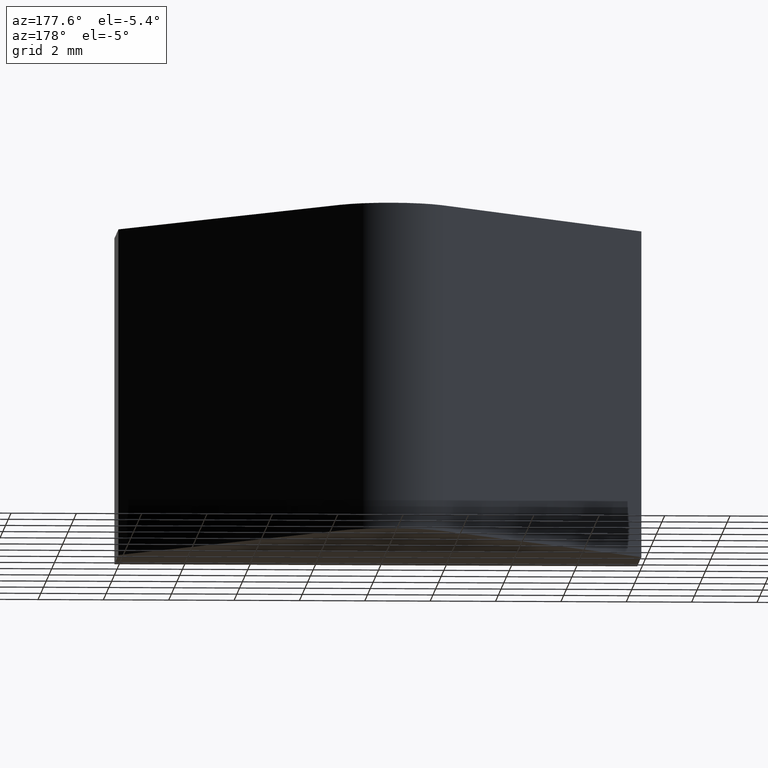
[diagram: clean part render]
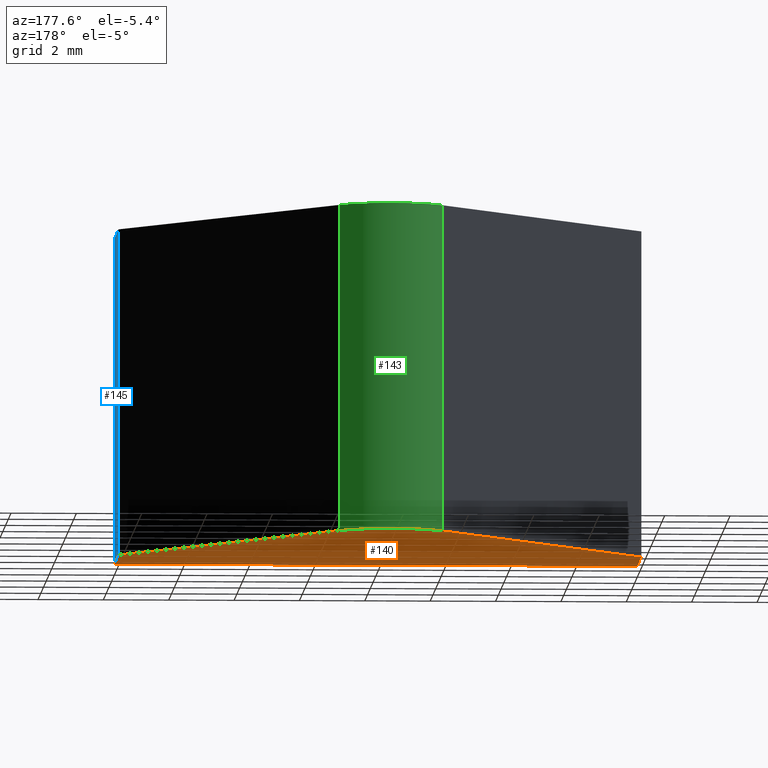
[diagram: same view with three faces highlighted in distinct colors, each labeled with its STEP entity id]
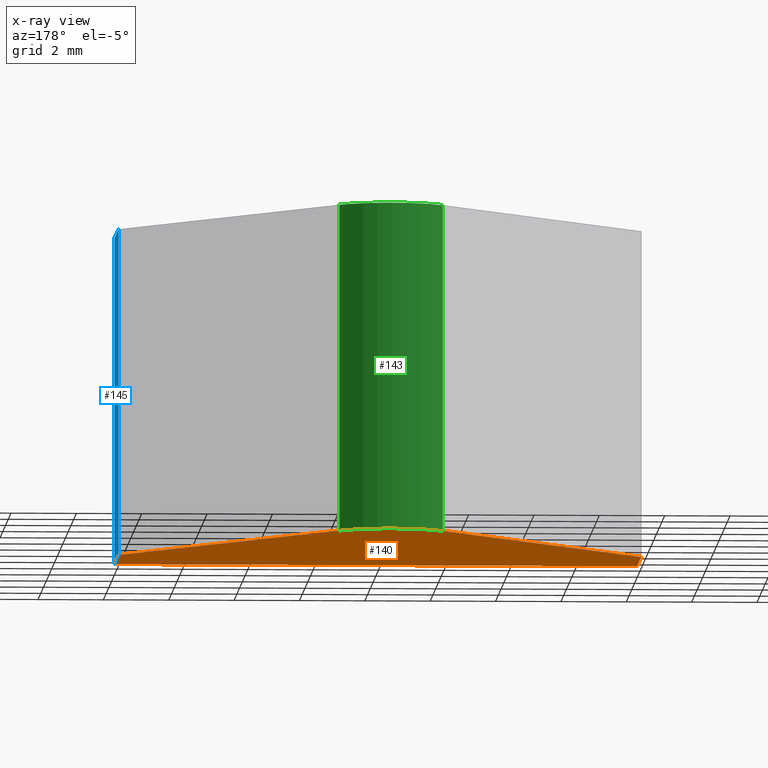
[diagram: x-ray of the same camera — body ghosted, the three highlighted faces saturated]
A machine part, auxiliary view with three faces highlighted in distinct colors.
The next image is the same camera in x-ray (body ghosted, the three faces saturated) — at least one of them is partly hidden behind the body in this view.
Their STEP definitions:

[orange] entity #140 — the highlighted planar face has unit normal (0, 0, 1).
#17=FACE_OUTER_BOUND('',#25,.T.);
#25=EDGE_LOOP('',(#97,#98,#99,#100,#101,#102));
#33=CIRCLE('',#172,2.);
#35=LINE('',#223,#51);
#36=LINE('',#225,#52);
#37=LINE('',#227,#53);
#38=LINE('',#229,#54);
#39=LINE('',#232,#55);
#51=VECTOR('',#185,10.);
#52=VECTOR('',#186,10.);
#53=VECTOR('',#187,10.);
#54=VECTOR('',#188,10.);
#55=VECTOR('',#191,10.);
#67=VERTEX_POINT('',#221);
#68=VERTEX_POINT('',#222);
#69=VERTEX_POINT('',#224);
#70=VERTEX_POINT('',#226);
#71=VERTEX_POINT('',#228);
#72=VERTEX_POINT('',#230);
#79=EDGE_CURVE('',#67,#68,#35,.T.);
#80=EDGE_CURVE('',#69,#67,#36,.T.);
#81=EDGE_CURVE('',#70,#69,#37,.T.);
#82=EDGE_CURVE('',#71,#70,#38,.T.);
#83=EDGE_CURVE('',#72,#71,#33,.T.);
#84=EDGE_CURVE('',#68,#72,#39,.T.);
#97=ORIENTED_EDGE('',*,*,#79,.F.);
#98=ORIENTED_EDGE('',*,*,#80,.F.);
#99=ORIENTED_EDGE('',*,*,#81,.F.);
#100=ORIENTED_EDGE('',*,*,#82,.F.);
#101=ORIENTED_EDGE('',*,*,#83,.F.);
#102=ORIENTED_EDGE('',*,*,#84,.F.);
#133=PLANE('',#171);
#140=ADVANCED_FACE('',(#17),#133,.F.);
#171=AXIS2_PLACEMENT_3D('',#220,#183,#184);
#172=AXIS2_PLACEMENT_3D('',#231,#189,#190);
#183=DIRECTION('center_axis',(0.,0.,1.));
#184=DIRECTION('ref_axis',(1.,0.,0.));
#185=DIRECTION('',(7.40148683083438E-16,1.,0.));
#186=DIRECTION('',(1.,0.,0.));
#187=DIRECTION('',(7.40148683083438E-16,-1.,0.));
#188=DIRECTION('',(-0.615242938683933,-0.788337571348441,0.));
#189=DIRECTION('center_axis',(0.,0.,1.));
#190=DIRECTION('ref_axis',(-0.788337571348441,-0.615242938683933,0.));
#191=DIRECTION('',(-0.615242938683933,0.788337571348441,0.));
#220=CARTESIAN_POINT('Origin',(2.77555756156289E-16,4.30027206291639,-5.));
#221=CARTESIAN_POINT('',(8.,0.,-5.));
#222=CARTESIAN_POINT('',(8.,3.,-5.));
#223=CARTESIAN_POINT('',(8.,3.,-5.));
#224=CARTESIAN_POINT('',(-8.,0.,-5.));
#225=CARTESIAN_POINT('',(8.,0.,-5.));
#226=CARTESIAN_POINT('',(-8.,3.,-5.));
#227=CARTESIAN_POINT('',(-8.,0.,-5.));
#228=CARTESIAN_POINT('',(-1.57667514269688,11.2304858773679,-5.));
#229=CARTESIAN_POINT('',(-8.,3.,-5.));
#230=CARTESIAN_POINT('',(1.57667514269688,11.2304858773679,-5.));
#231=CARTESIAN_POINT('Origin',(0.,10.,-5.));
#232=CARTESIAN_POINT('',(1.57667514269688,11.2304858773679,-5.));

[blue] entity #145 — the highlighted planar face has unit normal (1, -0, 0).
#22=FACE_OUTER_BOUND('',#30,.T.);
#30=EDGE_LOOP('',(#119,#120,#121,#122));
#35=LINE('',#223,#51);
#47=LINE('',#250,#63);
#48=LINE('',#253,#64);
#49=LINE('',#254,#65);
#51=VECTOR('',#185,10.);
#63=VECTOR('',#209,10.);
#64=VECTOR('',#212,10.);
#65=VECTOR('',#213,10.);
#67=VERTEX_POINT('',#221);
#68=VERTEX_POINT('',#222);
#77=VERTEX_POINT('',#248);
#78=VERTEX_POINT('',#252);
#79=EDGE_CURVE('',#67,#68,#35,.T.);
#93=EDGE_CURVE('',#77,#68,#47,.T.);
#94=EDGE_CURVE('',#77,#78,#48,.T.);
#95=EDGE_CURVE('',#67,#78,#49,.T.);
#119=ORIENTED_EDGE('',*,*,#94,.T.);
#120=ORIENTED_EDGE('',*,*,#95,.F.);
#121=ORIENTED_EDGE('',*,*,#79,.T.);
#122=ORIENTED_EDGE('',*,*,#93,.F.);
#137=PLANE('',#178);
#145=ADVANCED_FACE('',(#22),#137,.T.);
#178=AXIS2_PLACEMENT_3D('',#251,#210,#211);
#185=DIRECTION('',(7.40148683083438E-16,1.,0.));
#209=DIRECTION('',(0.,0.,-1.));
#210=DIRECTION('center_axis',(1.,-7.40148683083438E-16,0.));
#211=DIRECTION('ref_axis',(0.,0.,-1.));
#212=DIRECTION('',(-7.40148683083438E-16,-1.,0.));
#213=DIRECTION('',(0.,0.,1.));
#221=CARTESIAN_POINT('',(8.,0.,-5.));
#222=CARTESIAN_POINT('',(8.,3.,-5.));
#223=CARTESIAN_POINT('',(8.,3.,-5.));
#248=CARTESIAN_POINT('',(8.,3.,5.));
#250=CARTESIAN_POINT('',(8.,3.,0.));
#251=CARTESIAN_POINT('Origin',(8.,3.,0.));
#252=CARTESIAN_POINT('',(8.,0.,5.));
#253=CARTESIAN_POINT('',(8.,3.,5.));
#254=CARTESIAN_POINT('',(8.,0.,0.));

[green] entity #143 — the highlighted cylindrical surface (partial cylindrical patch) has radius 2 mm, axis along (0, 0, 1).
#16=CYLINDRICAL_SURFACE('',#175,2.);
#20=FACE_OUTER_BOUND('',#28,.T.);
#28=EDGE_LOOP('',(#111,#112,#113,#114));
#33=CIRCLE('',#172,2.);
#34=CIRCLE('',#176,2.);
#44=LINE('',#242,#60);
#45=LINE('',#246,#61);
#60=VECTOR('',#200,10.);
#61=VECTOR('',#205,10.);
#71=VERTEX_POINT('',#228);
#72=VERTEX_POINT('',#230);
#75=VERTEX_POINT('',#240);
#76=VERTEX_POINT('',#244);
#83=EDGE_CURVE('',#72,#71,#33,.T.);
#89=EDGE_CURVE('',#75,#71,#44,.T.);
#90=EDGE_CURVE('',#75,#76,#34,.T.);
#91=EDGE_CURVE('',#76,#72,#45,.T.);
#111=ORIENTED_EDGE('',*,*,#90,.T.);
#112=ORIENTED_EDGE('',*,*,#91,.T.);
#113=ORIENTED_EDGE('',*,*,#83,.T.);
#114=ORIENTED_EDGE('',*,*,#89,.F.);
#143=ADVANCED_FACE('',(#20),#16,.T.);
#172=AXIS2_PLACEMENT_3D('',#231,#189,#190);
#175=AXIS2_PLACEMENT_3D('',#243,#201,#202);
#176=AXIS2_PLACEMENT_3D('',#245,#203,#204);
#189=DIRECTION('center_axis',(0.,0.,1.));
#190=DIRECTION('ref_axis',(-0.788337571348441,-0.615242938683933,0.));
#200=DIRECTION('',(0.,0.,-1.));
#201=DIRECTION('center_axis',(0.,0.,1.));
#202=DIRECTION('ref_axis',(-0.788337571348441,-0.615242938683933,0.));
#203=DIRECTION('center_axis',(0.,0.,-1.));
#204=DIRECTION('ref_axis',(-0.788337571348441,-0.615242938683933,0.));
#205=DIRECTION('',(0.,0.,-1.));
#228=CARTESIAN_POINT('',(-1.57667514269688,11.2304858773679,-5.));
#230=CARTESIAN_POINT('',(1.57667514269688,11.2304858773679,-5.));
#231=CARTESIAN_POINT('Origin',(0.,10.,-5.));
#240=CARTESIAN_POINT('',(-1.57667514269688,11.2304858773679,5.));
#242=CARTESIAN_POINT('',(-1.57667514269688,11.2304858773679,0.));
#243=CARTESIAN_POINT('Origin',(0.,10.,0.));
#244=CARTESIAN_POINT('',(1.57667514269688,11.2304858773679,5.));
#245=CARTESIAN_POINT('Origin',(0.,10.,5.));
#246=CARTESIAN_POINT('',(1.57667514269688,11.2304858773679,0.));